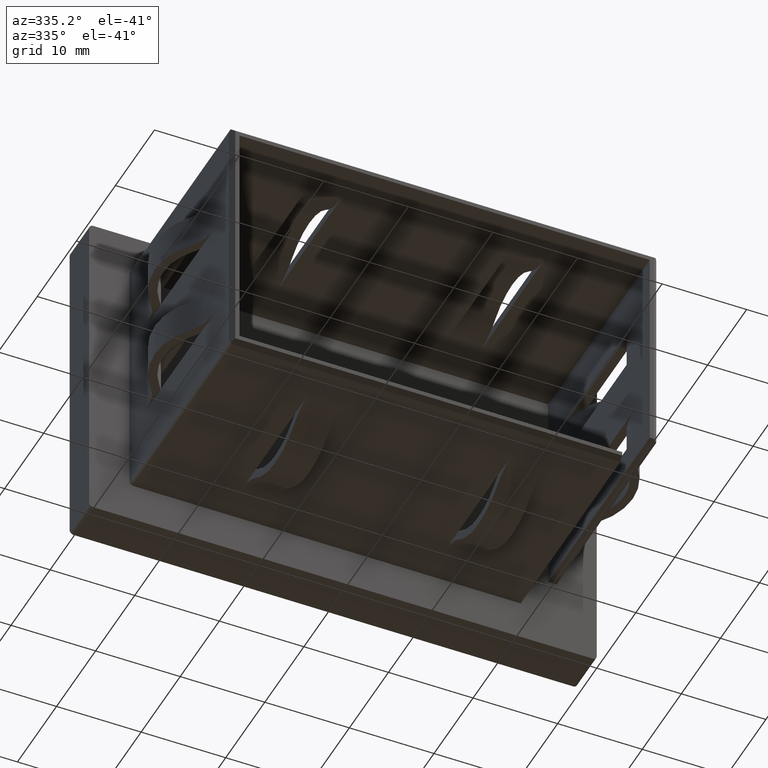
[diagram: clean part render]
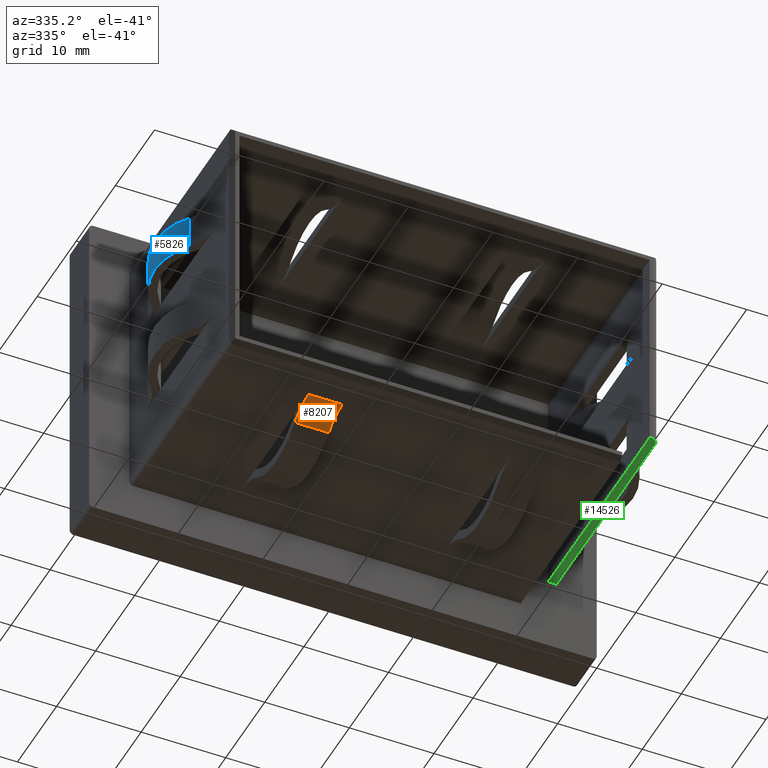
[diagram: same view with three faces highlighted in distinct colors, each labeled with its STEP entity id]
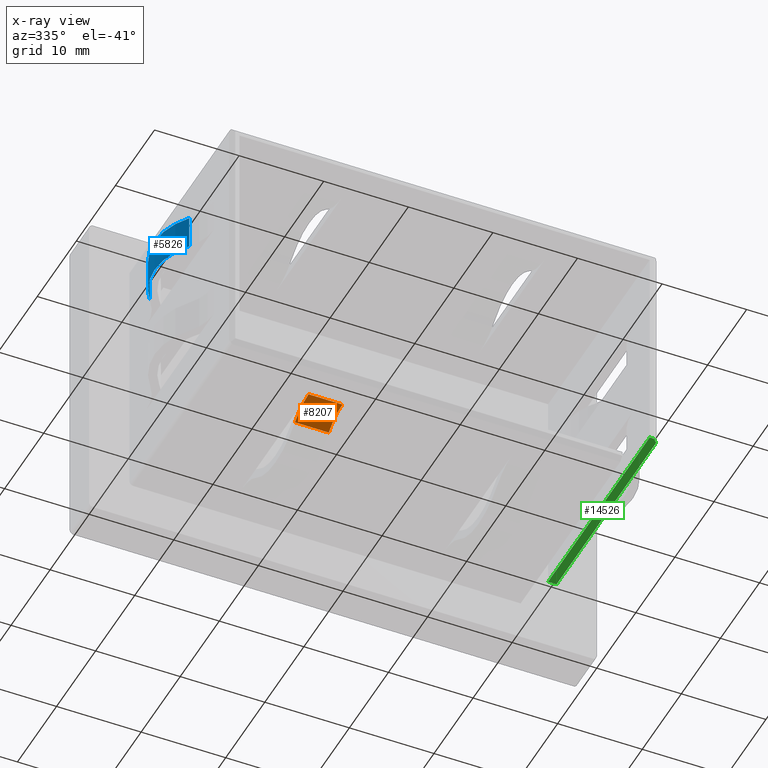
[diagram: x-ray of the same camera — body ghosted, the three highlighted faces saturated]
A machine part, auxiliary view with three faces highlighted in distinct colors.
The next image is the same camera in x-ray (body ghosted, the three faces saturated) — at least one of them is partly hidden behind the body in this view.
Their STEP definitions:

[orange] entity #8207 — the highlighted cylindrical surface (partial cylindrical patch) has radius 5.576 mm, axis along (-1, -0, 0).
#818 = CARTESIAN_POINT ( 'NONE',  ( -14.00000000000000400, -21.49999984365910100, -20.82598022770140400 ) ) ;
#1090 = EDGE_CURVE ( 'NONE', #13869, #14824, #17718, .T. ) ;
#2455 = EDGE_CURVE ( 'NONE', #14824, #4374, #6542, .T. ) ;
#2952 = ORIENTED_EDGE ( 'NONE', *, *, #1090, .F. ) ;
#4230 = EDGE_CURVE ( 'NONE', #17286, #4374, #8665, .T. ) ;
#4374 = VERTEX_POINT ( 'NONE', #6025 ) ;
#4808 = EDGE_LOOP ( 'NONE', ( #17427, #2952, #13519, #8821 ) ) ;
#5015 = DIRECTION ( 'NONE',  ( 1.000000000000000000, -3.697785493223492800E-032, -2.009823613764056000E-016 ) ) ;
#5890 = DIRECTION ( 'NONE',  ( -1.000000000000000000, -0.0000000000000000000, 1.927470528863118800E-016 ) ) ;
#6025 = CARTESIAN_POINT ( 'NONE',  ( -14.00000000000000400, -21.50000000000000000, -15.24999999999999500 ) ) ;
#6099 = CYLINDRICAL_SURFACE ( 'NONE', #14245, 5.575980227701393200 ) ;
#6542 = CIRCLE ( 'NONE', #11232, 5.575980227701393200 ) ;
#6639 = VECTOR ( 'NONE', #5890, 1000.000000000000000 ) ;
#6989 = CARTESIAN_POINT ( 'NONE',  ( -10.00000000000000400, -21.49999984365910100, -20.82598022770140400 ) ) ;
#7159 = DIRECTION ( 'NONE',  ( 3.111064611310357200E-016, 0.0000000000000000000, 1.000000000000000000 ) ) ;
#8149 = DIRECTION ( 'NONE',  ( -1.000000000000000000, -0.0000000000000000000, 1.927470528863118800E-016 ) ) ;
#8207 = ADVANCED_FACE ( 'NONE', ( #16819 ), #6099, .F. ) ;
#8665 = LINE ( 'NONE', #13712, #16892 ) ;
#8821 = ORIENTED_EDGE ( 'NONE', *, *, #4230, .T. ) ;
#9388 = DIRECTION ( 'NONE',  ( -3.111064611310357200E-016, 0.0000000000000000000, -1.000000000000000000 ) ) ;
#9449 = CARTESIAN_POINT ( 'NONE',  ( -10.00000000000000400, -21.49999984365910100, -20.82598022770140400 ) ) ;
#9942 = CARTESIAN_POINT ( 'NONE',  ( -10.00000000000000400, -17.99999992182954500, -16.48529410141791700 ) ) ;
#10369 = AXIS2_PLACEMENT_3D ( 'NONE', #9449, #5015, #9388 ) ;
#10812 = CARTESIAN_POINT ( 'NONE',  ( -10.00000000000000400, -21.49999984365910100, -15.25000000000000400 ) ) ;
#10901 = CIRCLE ( 'NONE', #10369, 5.575980227701393200 ) ;
#11232 = AXIS2_PLACEMENT_3D ( 'NONE', #818, #15110, #16281 ) ;
#13108 = CARTESIAN_POINT ( 'NONE',  ( -10.00000000000000400, -17.99999992182954500, -16.48529410141791700 ) ) ;
#13519 = ORIENTED_EDGE ( 'NONE', *, *, #14468, .T. ) ;
#13712 = CARTESIAN_POINT ( 'NONE',  ( -10.00000000000000400, -21.50000000000000000, -15.25000000000000700 ) ) ;
#13869 = VERTEX_POINT ( 'NONE', #9942 ) ;
#14245 = AXIS2_PLACEMENT_3D ( 'NONE', #6989, #15637, #7159 ) ;
#14468 = EDGE_CURVE ( 'NONE', #13869, #17286, #10901, .T. ) ;
#14824 = VERTEX_POINT ( 'NONE', #18141 ) ;
#15110 = DIRECTION ( 'NONE',  ( 1.000000000000000000, -3.697785493223492800E-032, -2.009823613764056000E-016 ) ) ;
#15637 = DIRECTION ( 'NONE',  ( -1.000000000000000000, -0.0000000000000000000, 1.927470528863118800E-016 ) ) ;
#16281 = DIRECTION ( 'NONE',  ( -3.111064611310357200E-016, 0.0000000000000000000, -1.000000000000000000 ) ) ;
#16819 = FACE_OUTER_BOUND ( 'NONE', #4808, .T. ) ;
#16892 = VECTOR ( 'NONE', #8149, 1000.000000000000000 ) ;
#17286 = VERTEX_POINT ( 'NONE', #10812 ) ;
#17427 = ORIENTED_EDGE ( 'NONE', *, *, #2455, .F. ) ;
#17718 = LINE ( 'NONE', #13108, #6639 ) ;
#18141 = CARTESIAN_POINT ( 'NONE',  ( -14.00000000000000400, -17.99999992182954500, -16.48529410141791700 ) ) ;

[blue] entity #5826 — the highlighted cylindrical surface (partial cylindrical patch) has radius 7.9657 mm, axis along (0, -0, 1).
#559 = AXIS2_PLACEMENT_3D ( 'NONE', #3316, #11730, #4645 ) ;
#880 = CARTESIAN_POINT ( 'NONE',  ( -20.28431378171577400, -12.99999999999999800, 8.000000000000000000 ) ) ;
#1075 = VERTEX_POINT ( 'NONE', #7674 ) ;
#1118 = EDGE_CURVE ( 'NONE', #4406, #1520, #9731, .T. ) ;
#1520 = VERTEX_POINT ( 'NONE', #14084 ) ;
#1963 = DIRECTION ( 'NONE',  ( 6.424901762877059800E-017, -0.0000000000000000000, 1.000000000000000000 ) ) ;
#2578 = DIRECTION ( 'NONE',  ( 6.345874637942571300E-017, -0.0000000000000000000, 1.000000000000000000 ) ) ;
#2639 = DIRECTION ( 'NONE',  ( -1.000000000000000000, 0.0000000000000000000, 1.088872589530338000E-016 ) ) ;
#2905 = ORIENTED_EDGE ( 'NONE', *, *, #8028, .F. ) ;
#3316 = CARTESIAN_POINT ( 'NONE',  ( -20.28431378171577400, -12.99999999999999800, 4.000000000000000000 ) ) ;
#3490 = CARTESIAN_POINT ( 'NONE',  ( -26.48529410163993300, -7.999999999999996400, 4.000000000000001800 ) ) ;
#3785 = LINE ( 'NONE', #3490, #17260 ) ;
#4406 = VERTEX_POINT ( 'NONE', #7863 ) ;
#4645 = DIRECTION ( 'NONE',  ( 1.000000000000000000, 0.0000000000000000000, -1.088872589530338000E-016 ) ) ;
#5756 = CYLINDRICAL_SURFACE ( 'NONE', #559, 7.965686218279418400 ) ;
#5826 = ADVANCED_FACE ( 'NONE', ( #13702 ), #5756, .T. ) ;
#6722 = AXIS2_PLACEMENT_3D ( 'NONE', #18300, #2578, #2639 ) ;
#7674 = CARTESIAN_POINT ( 'NONE',  ( -26.48529410163993300, -17.99999999999999300, 4.000000000000000000 ) ) ;
#7863 = CARTESIAN_POINT ( 'NONE',  ( -26.48529410163993300, -7.999999999999996400, 8.000000000000001800 ) ) ;
#8028 = EDGE_CURVE ( 'NONE', #8457, #4406, #3785, .T. ) ;
#8457 = VERTEX_POINT ( 'NONE', #9068 ) ;
#8875 = ORIENTED_EDGE ( 'NONE', *, *, #1118, .F. ) ;
#9068 = CARTESIAN_POINT ( 'NONE',  ( -26.48529410163993300, -7.999999999999996400, 4.000000000000001800 ) ) ;
#9284 = DIRECTION ( 'NONE',  ( -1.000000000000000000, 0.0000000000000000000, 0.0000000000000000000 ) ) ;
#9731 = CIRCLE ( 'NONE', #12901, 7.965686218279418400 ) ;
#10363 = DIRECTION ( 'NONE',  ( 6.424901762877059800E-017, -0.0000000000000000000, 1.000000000000000000 ) ) ;
#10779 = ORIENTED_EDGE ( 'NONE', *, *, #11208, .T. ) ;
#11208 = EDGE_CURVE ( 'NONE', #1075, #1520, #17487, .T. ) ;
#11730 = DIRECTION ( 'NONE',  ( 6.424901762877059800E-017, -0.0000000000000000000, 1.000000000000000000 ) ) ;
#12405 = ORIENTED_EDGE ( 'NONE', *, *, #15219, .T. ) ;
#12901 = AXIS2_PLACEMENT_3D ( 'NONE', #880, #15048, #9284 ) ;
#13664 = EDGE_LOOP ( 'NONE', ( #8875, #2905, #12405, #10779 ) ) ;
#13698 = VECTOR ( 'NONE', #10363, 1000.000000000000000 ) ;
#13702 = FACE_OUTER_BOUND ( 'NONE', #13664, .T. ) ;
#14084 = CARTESIAN_POINT ( 'NONE',  ( -26.48529410163993300, -17.99999999999999300, 8.000000000000000000 ) ) ;
#15048 = DIRECTION ( 'NONE',  ( 6.345874637942571300E-017, -0.0000000000000000000, 1.000000000000000000 ) ) ;
#15219 = EDGE_CURVE ( 'NONE', #8457, #1075, #16454, .T. ) ;
#15827 = CARTESIAN_POINT ( 'NONE',  ( -26.48529410163993300, -17.99999999999999300, 4.000000000000000000 ) ) ;
#16454 = CIRCLE ( 'NONE', #6722, 7.965686218279418400 ) ;
#17260 = VECTOR ( 'NONE', #1963, 1000.000000000000000 ) ;
#17487 = LINE ( 'NONE', #15827, #13698 ) ;
#18300 = CARTESIAN_POINT ( 'NONE',  ( -20.28431378171577400, -12.99999999999999800, 4.000000000000000000 ) ) ;

[green] entity #14526 — the highlighted planar face has unit normal (0, 0, 1).
#1870 = VERTEX_POINT ( 'NONE', #12831 ) ;
#2538 = ORIENTED_EDGE ( 'NONE', *, *, #4258, .T. ) ;
#3107 = LINE ( 'NONE', #7720, #4843 ) ;
#3411 = EDGE_CURVE ( 'NONE', #12358, #1870, #7589, .T. ) ;
#3457 = VERTEX_POINT ( 'NONE', #11891 ) ;
#3702 = CARTESIAN_POINT ( 'NONE',  ( 25.24999999999999600, -25.50000000000000000, -11.00000000000000000 ) ) ;
#4258 = EDGE_CURVE ( 'NONE', #3457, #1870, #12438, .T. ) ;
#4365 = CARTESIAN_POINT ( 'NONE',  ( 24.24999999999999600, -26.00000000000000000, -10.99999999999999600 ) ) ;
#4381 = DIRECTION ( 'NONE',  ( -0.7071067811865426900, -0.7071067811865524600, 1.226634733346689800E-015 ) ) ;
#4390 = VECTOR ( 'NONE', #4381, 1000.000000000000000 ) ;
#4589 = ORIENTED_EDGE ( 'NONE', *, *, #8024, .F. ) ;
#4843 = VECTOR ( 'NONE', #6483, 1000.000000000000000 ) ;
#4926 = VECTOR ( 'NONE', #6605, 1000.000000000000000 ) ;
#5515 = VERTEX_POINT ( 'NONE', #11321 ) ;
#6483 = DIRECTION ( 'NONE',  ( -0.0000000000000000000, 1.000000000000000000, -0.0000000000000000000 ) ) ;
#6591 = LINE ( 'NONE', #6660, #4390 ) ;
#6605 = DIRECTION ( 'NONE',  ( 1.000000000000000000, 0.0000000000000000000, -1.734723475976805500E-015 ) ) ;
#6660 = CARTESIAN_POINT ( 'NONE',  ( 24.74999999999999300, -26.00000000000001100, -10.99999999999999800 ) ) ;
#7292 = EDGE_CURVE ( 'NONE', #9436, #3457, #3107, .T. ) ;
#7589 = LINE ( 'NONE', #7690, #9580 ) ;
#7655 = DIRECTION ( 'NONE',  ( 1.000000000000000000, 0.0000000000000000000, -1.734723475976805500E-015 ) ) ;
#7690 = CARTESIAN_POINT ( 'NONE',  ( 25.24999999999999600, -26.00000000000000000, -10.99999999999999800 ) ) ;
#7720 = CARTESIAN_POINT ( 'NONE',  ( 24.24999999999999600, -26.00000000000000000, -10.99999999999999600 ) ) ;
#8024 = EDGE_CURVE ( 'NONE', #9436, #5515, #17058, .T. ) ;
#8890 = CARTESIAN_POINT ( 'NONE',  ( 24.24999999999999600, -26.00000000000000000, -10.99999999999999600 ) ) ;
#9436 = VERTEX_POINT ( 'NONE', #16345 ) ;
#9580 = VECTOR ( 'NONE', #17662, 1000.000000000000000 ) ;
#9797 = ORIENTED_EDGE ( 'NONE', *, *, #12636, .T. ) ;
#10014 = FACE_OUTER_BOUND ( 'NONE', #13790, .T. ) ;
#10033 = DIRECTION ( 'NONE',  ( 1.734723475976805700E-015, 0.0000000000000000000, 1.000000000000000000 ) ) ;
#11225 = ORIENTED_EDGE ( 'NONE', *, *, #3411, .F. ) ;
#11321 = CARTESIAN_POINT ( 'NONE',  ( 24.75000000000000400, -26.00000000000000000, -10.99999999999999800 ) ) ;
#11442 = DIRECTION ( 'NONE',  ( 1.000000000000000000, 0.0000000000000000000, -1.734723475976805700E-015 ) ) ;
#11891 = CARTESIAN_POINT ( 'NONE',  ( 24.24999999999999600, 0.0000000000000000000, -10.99999999999999600 ) ) ;
#12358 = VERTEX_POINT ( 'NONE', #3702 ) ;
#12438 = LINE ( 'NONE', #13583, #4926 ) ;
#12636 = EDGE_CURVE ( 'NONE', #12358, #5515, #6591, .T. ) ;
#12831 = CARTESIAN_POINT ( 'NONE',  ( 25.24999999999999600, 0.0000000000000000000, -10.99999999999999800 ) ) ;
#13276 = VECTOR ( 'NONE', #7655, 1000.000000000000000 ) ;
#13389 = ORIENTED_EDGE ( 'NONE', *, *, #7292, .T. ) ;
#13583 = CARTESIAN_POINT ( 'NONE',  ( 24.24999999999999600, 0.0000000000000000000, -10.99999999999999600 ) ) ;
#13790 = EDGE_LOOP ( 'NONE', ( #11225, #9797, #4589, #13389, #2538 ) ) ;
#14362 = PLANE ( 'NONE',  #17268 ) ;
#14526 = ADVANCED_FACE ( 'NONE', ( #10014 ), #14362, .F. ) ;
#16345 = CARTESIAN_POINT ( 'NONE',  ( 24.24999999999999600, -26.00000000000000000, -10.99999999999999600 ) ) ;
#17058 = LINE ( 'NONE', #8890, #13276 ) ;
#17268 = AXIS2_PLACEMENT_3D ( 'NONE', #4365, #10033, #11442 ) ;
#17662 = DIRECTION ( 'NONE',  ( -0.0000000000000000000, 1.000000000000000000, -0.0000000000000000000 ) ) ;